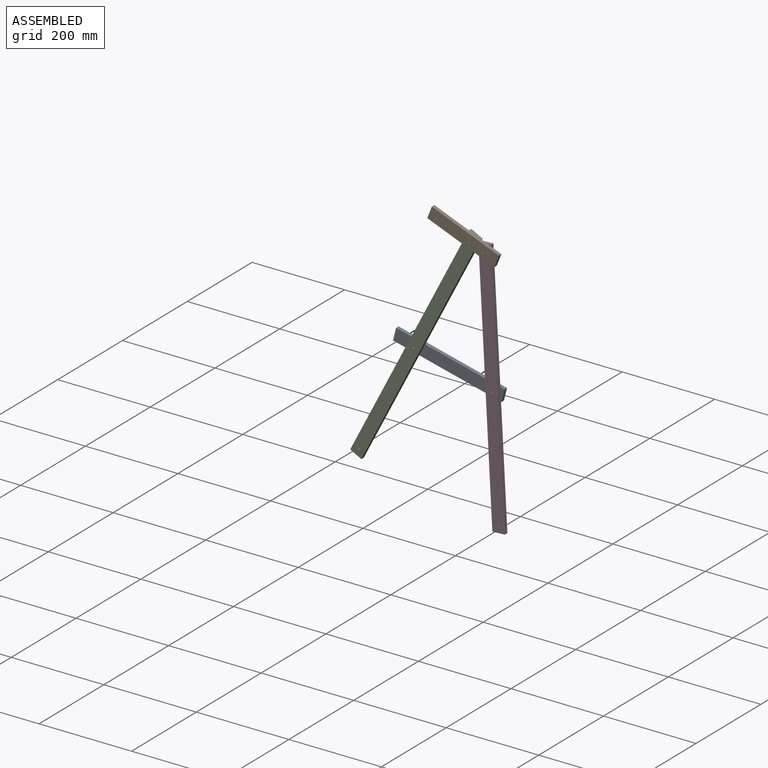
[diagram: assembled view]
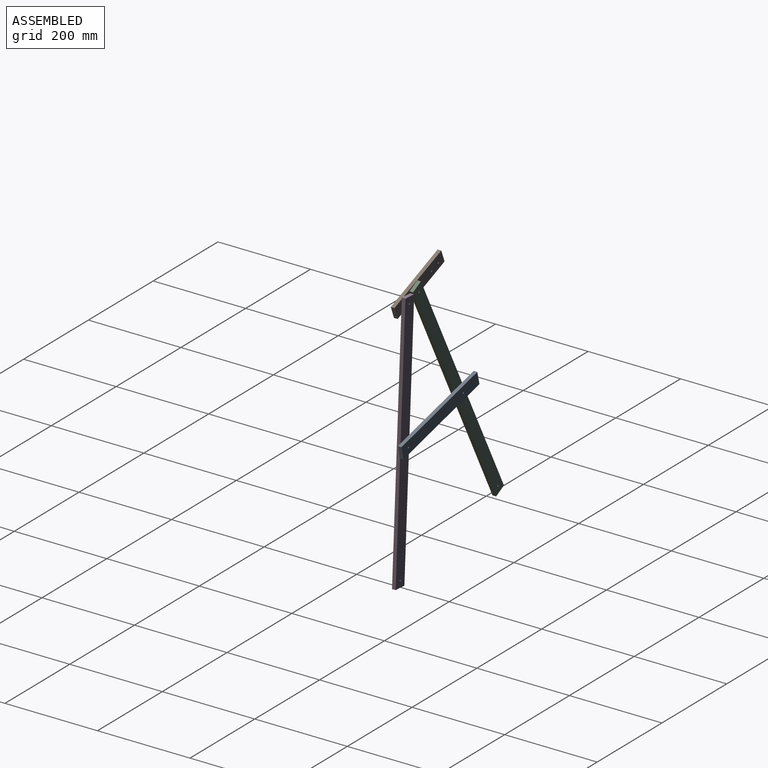
[diagram: assembled view, second angle]
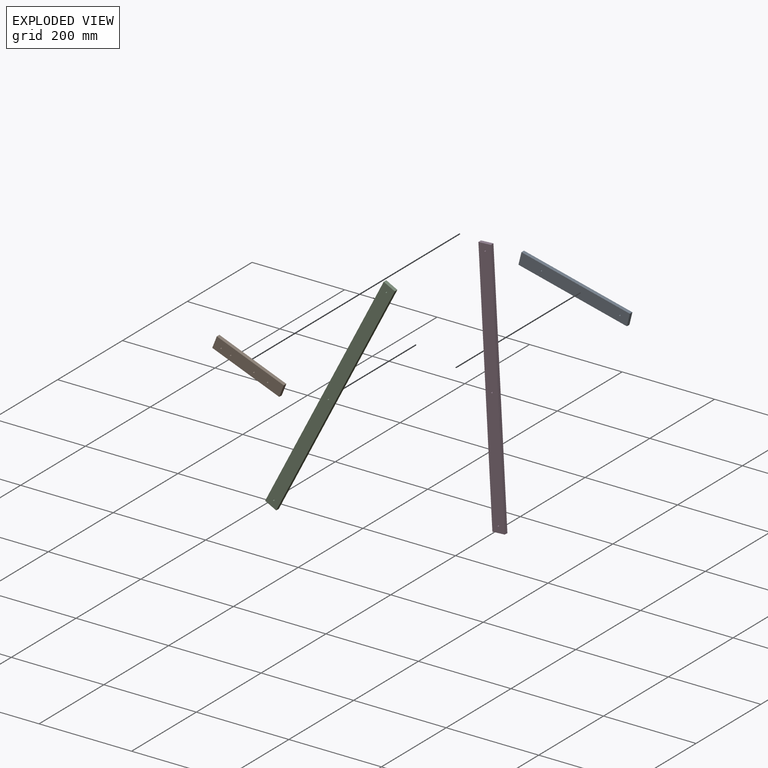
[diagram: exploded view]
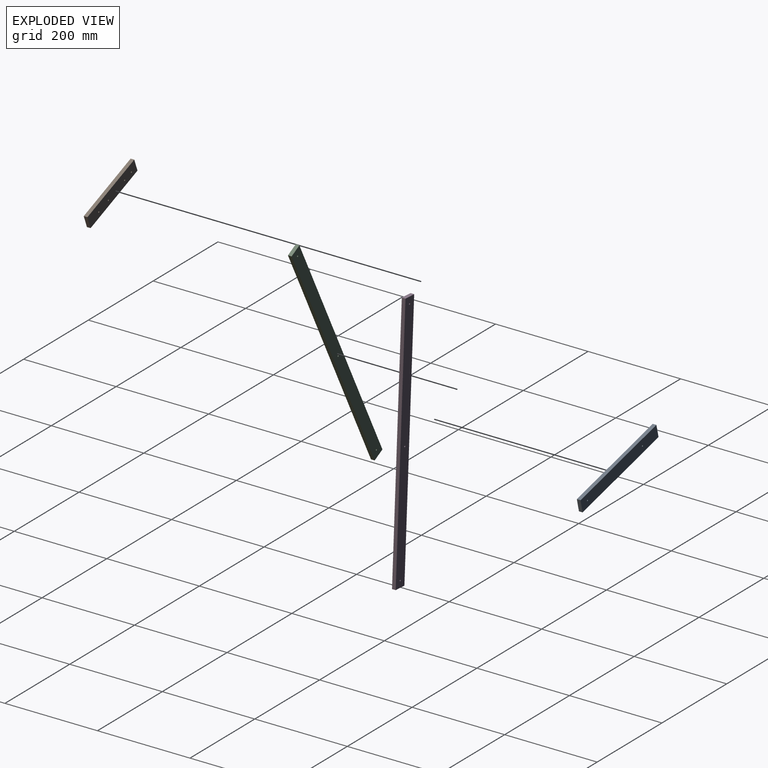
[diagram: exploded view, second angle]
ASSEMBLY  parts=4 mates=4
PART A: 8 faces, bbox 241.3x7.9x27 mm
  f0: plane 241.3x7.94mm, normal (0,0,1), area 1915.3mm2, adj f1,f5,f6,f7
  f1: plane 26.99x7.94mm, normal (-1,0,0), area 214.2mm2, adj f0,f2,f6,f7
  f2: plane 241.3x7.94mm, normal (0,0,-1), area 1915.3mm2, adj f1,f5,f6,f7
  f3: cylinder r=1.59mm len=7.94mm, axis (0,1,0), area 79.2mm2, adj f6,f7
  f4: cylinder r=1.59mm len=7.94mm, axis (0,1,0), area 79.2mm2, adj f6,f7
  f5: plane 26.99x7.94mm, normal (1,0,0), area 214.2mm2, adj f0,f2,f6,f7
  f6: plane 241.3x26.99mm, normal (0,-1,0), area 6496.2mm2, adj f0,f1,f2,f3,f4,f5
  f7: plane 241.3x26.99mm, normal (0,1,0), area 6496.2mm2, adj f0,f1,f2,f3,f4,f5
PART B: 10 faces, bbox 155.6x7.9x27 mm
  f0: plane 155.58x7.94mm, normal (0,0,1), area 1234.9mm2, adj f1,f7,f8,f9
  f1: plane 26.99x7.94mm, normal (-1,0,0), area 214.2mm2, adj f0,f2,f8,f9
  f2: plane 155.58x7.94mm, normal (0,0,-1), area 1234.9mm2, adj f1,f7,f8,f9
  f3: cylinder r=1.59mm len=7.94mm, axis (0,1,0), area 79.2mm2, adj f8,f9
  f4: cylinder r=1.59mm len=7.94mm, axis (0,1,0), area 79.2mm2, adj f8,f9
  f5: cylinder r=1.59mm len=7.94mm, axis (0,1,0), area 79.2mm2, adj f8,f9
  f6: cylinder r=1.59mm len=7.94mm, axis (0,1,0), area 79.2mm2, adj f8,f9
  f7: plane 26.99x7.94mm, normal (1,0,0), area 214.2mm2, adj f0,f2,f8,f9
  f8: plane 155.58x26.99mm, normal (0,-1,0), area 4166.9mm2, adj f0,f1,f2,f3,f4,f5,f6,f7
  f9: plane 155.58x26.99mm, normal (0,1,0), area 4166.9mm2, adj f0,f1,f2,f3,f4,f5,f6,f7
PART C: 9 faces, bbox 27x7.9x558.8 mm
  f0: plane 26.99x7.94mm, normal (0,0,1), area 214.2mm2, adj f1,f3,f4,f5
  f1: plane 558.8x7.94mm, normal (-1,0,0), area 4435.5mm2, adj f0,f2,f4,f5
  f2: plane 26.99x7.94mm, normal (0,0,-1), area 214.2mm2, adj f1,f3,f4,f5
  f3: plane 558.8x7.94mm, normal (1,0,0), area 4435.5mm2, adj f0,f2,f4,f5
  f4: plane 558.8x26.99mm, normal (0,-1,0), area 15056.9mm2, adj f0,f1,f2,f3,f6,f7,f8
  f5: plane 558.8x26.99mm, normal (0,1,0), area 15056.9mm2, adj f0,f1,f2,f3,f6,f7,f8
  f6: cylinder r=1.59mm len=7.94mm, axis (0,-1,0), area 79.2mm2, adj f4,f5
  f7: cylinder r=1.59mm len=7.94mm, axis (0,-1,0), area 79.2mm2, adj f4,f5
  f8: cylinder r=1.59mm len=7.94mm, axis (0,-1,0), area 79.2mm2, adj f4,f5
PART D: same geometry as C
PLACE A rot(axis=(0,1,0),13.8deg) t=(-294.42,-82.63,51.28)mm
PLACE B rot(axis=(0,1,0),21.5deg) t=(-254.2,-98.5,319.35)mm
PLACE C rot(axis=(0,1,0),27.3deg) t=(-335.41,-90.57,68.39)mm
PLACE D rot(axis=(0,-1,0),3.1deg) t=(-162.71,-90.57,42.06)mm
MATE revolute C.f7 <-> A.f3  axis (0,1,0) through (-362.11,-90.57,81.82)mm
MATE revolute A.f4 <-> D.f7  axis (0,-1,0) through (-192.53,-90.57,40.12)mm
MATE revolute B.f5 <-> C.f8  axis (0,1,0) through (-236.83,-98.5,324.43)mm
MATE revolute B.f6 <-> D.f8  axis (0,1,0) through (-207.3,-98.5,312.78)mm
